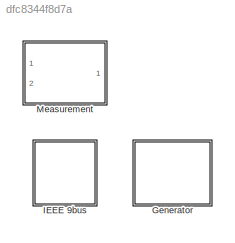
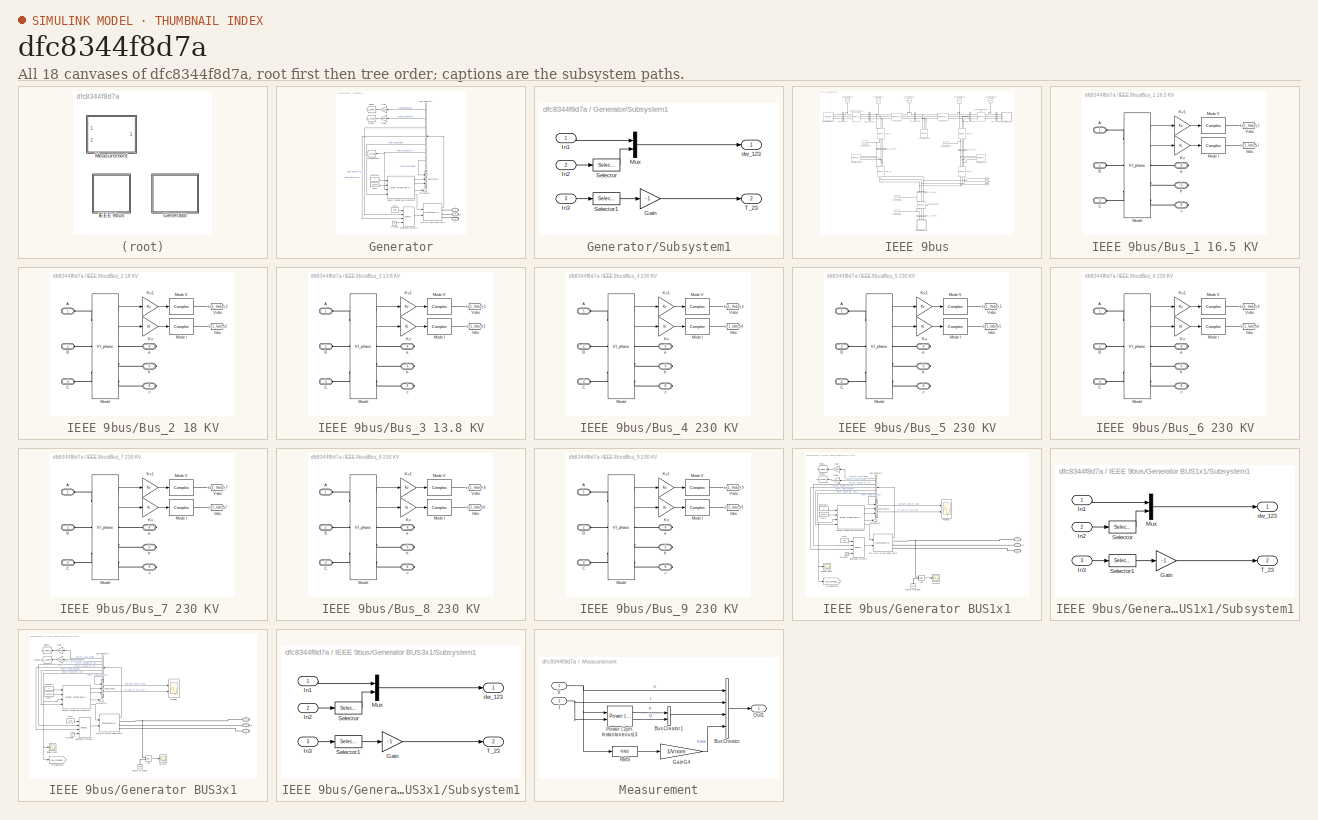
[diagram: thumbnail index - all 18 canvases of the model, root first then tree order]
MODEL slx_dfc8344f8d7a
KIND library
CONFIG AbsTol = auto
CONFIG EnableMultiTasking = off
CONFIG FixedStep = auto
CONFIG MaxStep = auto
CONFIG MinStep = auto
CONFIG RelTol = 1e-3
CONFIG SampleTimeConstraint = Unconstrained
CONFIG Solver = VariableStepAuto
CONFIG SolverName = VariableStepAuto
CONFIG StartTime = 0.0
CONFIG StopTime = 10.0
BLOCK [SubSystem] Generator
  Ports = [0, 0, 0, 0, 0, 0, 3]
  RequestExecContextInheritance = off
  Variant = off
BLOCK [Reference] Generator/192 MVA 18kV 3600 rpm2  REF=powerlib/Machines/Synchronous Machine
pu Standard
  Ports = [2, 1, 0, 0, 0, 0, 3]
  SourceBlock = powerlib/Machines/Synchronous Machine\npu Standard
  SourceProductBaseCode = PS
  SourceProductName = Simscape Power Systems
  SourceType = Synchronous Machine
BLOCK [PMIOPort] Generator/A
  Port = 1
  Side = Right
BLOCK [PMIOPort] Generator/B
  Port = 2
  Side = Right
BLOCK [BusSelector] Generator/Bus Selector3
  OutputAsBus = off
  OutputSignals = Output active power   Peo (pu),Output reactive power  Qeo (pu),dq0 components.Stator voltage  vd (pu),dq0 components.Stator voltage  vq (pu),Mechanical.Rotor angle deviation  d_theta (rad),Mechanical.Rotor speed  wm  (pu),Mechanical.Rotor speed deviation  dw (pu)  <repeated x3 — deduplicated; at blocks: Bus Selector3>
  Ports = [1, 7]
BLOCK [PMIOPort] Generator/C
  Port = 3
  Side = Right
BLOCK [Constant] Generator/Constant1
BLOCK [Reference] Generator/Excitation System2  REF=sps_avr/Excitation System
  Ports = [4, 1]
  SourceBlock = sps_avr/Excitation System
  SourceProductBaseCode = PS
  SourceProductName = Simscape Power Systems
  SourceType = Excitation System
BLOCK [Gain] Generator/Gain
  Gain = 192e6
  OutDataTypeStr = Inherit: Inherit via internal rule
  ParamDataTypeStr = Inherit: Inherit via internal rule
  SaturateOnIntegerOverflow = off
BLOCK [Gain] Generator/Gain1
  Gain = 192e6
  OutDataTypeStr = Inherit: Inherit via internal rule
  ParamDataTypeStr = Inherit: Inherit via internal rule
  SaturateOnIntegerOverflow = off
BLOCK [Ground] Generator/Ground
BLOCK [Goto] Generator/OmegaGen2
  GotoTag = ss1_OmegaGen_2
  TagVisibility = global
BLOCK [Goto] Generator/Pgen2
  GotoTag = ss1_Pgen_2
  TagVisibility = global
BLOCK [Constant] Generator/Pref2
  Value = 0.84896
BLOCK [Goto] Generator/Qgen2
  GotoTag = ss1_Qgen_2
  TagVisibility = global
BLOCK [Reference] Generator/Steam Turbine and Governor1  REF=powerlib/Machines/Steam Turbine
and Governor
  Ports = [4, 4]
  SourceBlock = powerlib/Machines/Steam Turbine\nand Governor
  SourceProductBaseCode = PS
  SourceProductName = Simscape Power Systems
  SourceType = Steam Turbine and Governor
BLOCK [SubSystem] Generator/Subsystem1
  Ports = [3, 2]
  RequestExecContextInheritance = off
  Variant = off
BLOCK [Gain] Generator/Subsystem1/Gain
  Gain = -1
BLOCK [Inport] Generator/Subsystem1/In1
  IconDisplay = Port number
BLOCK [Inport] Generator/Subsystem1/In2
  IconDisplay = Port number
  Port = 2
BLOCK [Inport] Generator/Subsystem1/In3
  IconDisplay = Port number
  Port = 3
BLOCK [Mux] Generator/Subsystem1/Mux
  DisplayOption = bar
  Inputs = 2
  Ports = [2, 1]
BLOCK [Selector] Generator/Subsystem1/Selector
  IndexOptions = Index vector (dialog)
  Indices = [4 3]
  InputPortWidth = 4
  OutputSizes = 1
  Ports = [1, 1]
BLOCK [Selector] Generator/Subsystem1/Selector1
  IndexOptions = Index vector (dialog)
  Indices = [4 3]
  InputPortWidth = 4
  OutputSizes = 1
  Ports = [1, 1]
BLOCK [Outport] Generator/Subsystem1/T_23
  IconDisplay = Port number
  Port = 2
BLOCK [Outport] Generator/Subsystem1/dw_123
  IconDisplay = Port number
BLOCK [Terminator] Generator/Terminator1
BLOCK [Constant] Generator/Vref2
  Value = 1.025
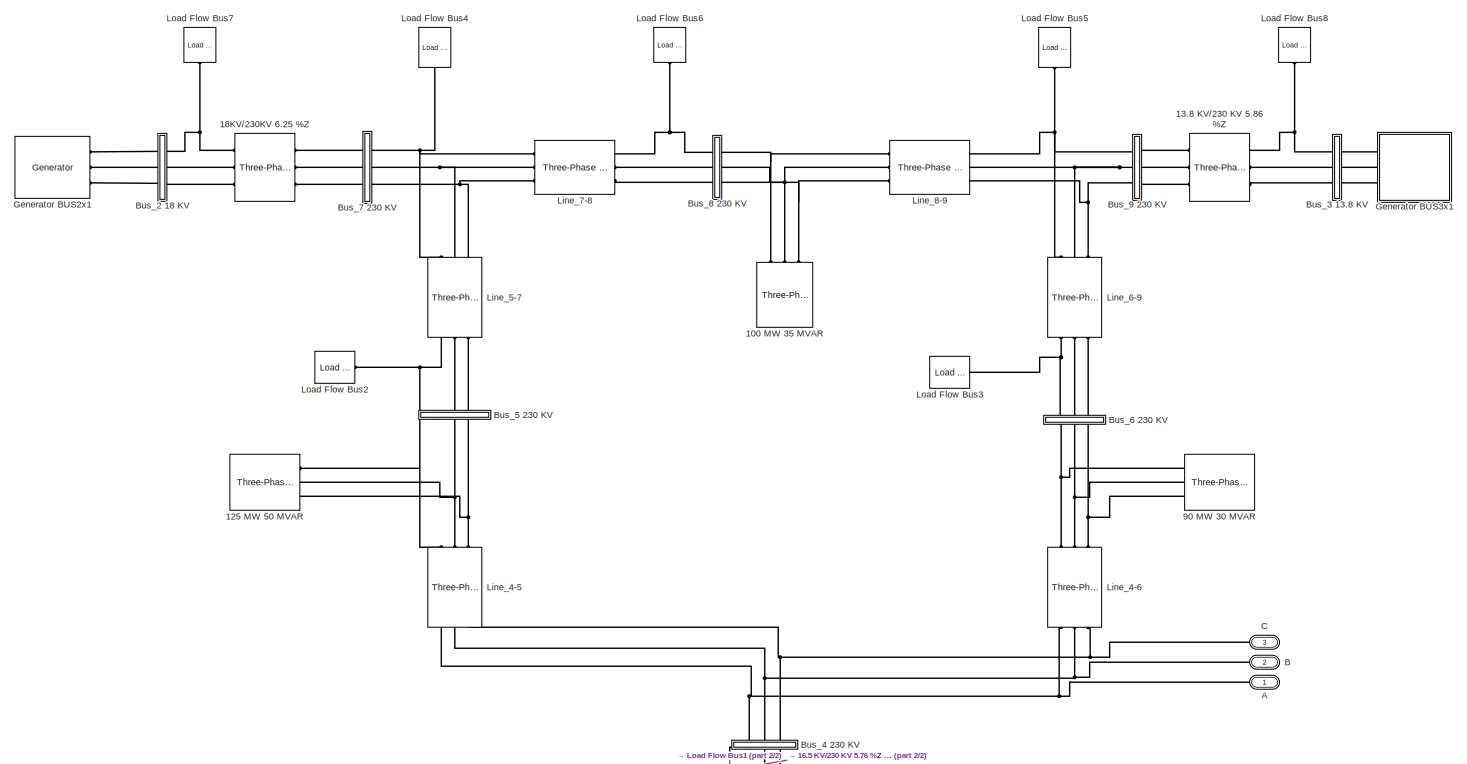
[diagram: IEEE 9bus - part 1/2, full width, middle band]
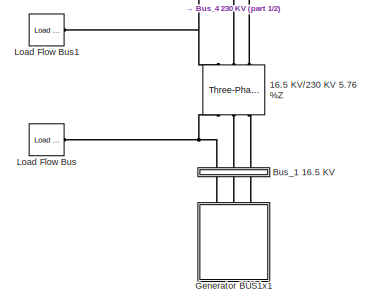
[diagram: IEEE 9bus - part 2/2, bottom center region]
BLOCK [SubSystem] IEEE 9bus
  Ports = [0, 0, 0, 0, 0, 3]
  RequestExecContextInheritance = off
  Variant = off
BLOCK [Reference] IEEE 9bus/100 MW 35 MVAR  REF=powerlib/Elements/Three-Phase
Series RLC Load
  AttributesFormatString = \n
  Ports = [0, 0, 0, 0, 0, 3]
  SourceBlock = powerlib/Elements/Three-Phase\nSeries RLC Load
  SourceProductBaseCode = PS
  SourceProductName = Simscape Power Systems
  SourceType = Three-Phase Series RLC Load
BLOCK [Reference] IEEE 9bus/125 MW 50 MVAR  REF=powerlib/Elements/Three-Phase
Series RLC Load
  AttributesFormatString = \n
  Ports = [0, 0, 0, 0, 0, 3]
  SourceBlock = powerlib/Elements/Three-Phase\nSeries RLC Load
  SourceProductBaseCode = PS
  SourceProductName = Simscape Power Systems
  SourceType = Three-Phase Series RLC Load
BLOCK [Reference] IEEE 9bus/13.8 KV//230 KV 5.86 %Z  REF=powerlib/Elements/Three-Phase
Transformer
(Two Windings)
  Ports = [0, 0, 0, 0, 0, 3, 3]
  SourceBlock = powerlib/Elements/Three-Phase\nTransformer\n(Two Windings)
  SourceProductBaseCode = PS
  SourceProductName = Simscape Power Systems
  SourceType = Three-Phase Transformer (Two Windings)
BLOCK [Reference] IEEE 9bus/16.5 KV//230 KV 5.76 %Z       REF=powerlib/Elements/Three-Phase
Transformer
(Two Windings)
  Ports = [0, 0, 0, 0, 0, 3, 3]
  SourceBlock = powerlib/Elements/Three-Phase\nTransformer\n(Two Windings)
  SourceProductBaseCode = PS
  SourceProductName = Simscape Power Systems
  SourceType = Three-Phase Transformer (Two Windings)
BLOCK [Reference] IEEE 9bus/18KV//230KV 6.25 %Z  REF=powerlib/Elements/Three-Phase
Transformer
(Two Windings)
  Ports = [0, 0, 0, 0, 0, 3, 3]
  SourceBlock = powerlib/Elements/Three-Phase\nTransformer\n(Two Windings)
  SourceProductBaseCode = PS
  SourceProductName = Simscape Power Systems
  SourceType = Three-Phase Transformer (Two Windings)
BLOCK [Reference] IEEE 9bus/90 MW 30 MVAR  REF=powerlib/Elements/Three-Phase
Series RLC Load
  AttributesFormatString = \n
  Ports = [0, 0, 0, 0, 0, 3]
  SourceBlock = powerlib/Elements/Three-Phase\nSeries RLC Load
  SourceProductBaseCode = PS
  SourceProductName = Simscape Power Systems
  SourceType = Three-Phase Series RLC Load
BLOCK [PMIOPort] IEEE 9bus/A
  Port = 1
  Side = Left
BLOCK [PMIOPort] IEEE 9bus/B
  Port = 2
  Side = Left
BLOCK [SubSystem] IEEE 9bus/Bus_1 16.5 KV
  CloseFcn = sps_rtmsupport('CloseFcn',gcbh);
  CopyFcn = sps_rtmsupport('CopyFcn',gcbh); powericon('ThreePhaseVIMeasurementCopy',gcb)
  DeleteFcn = sps_rtmsupport('DeleteFcn',gcbh);
  DialogController = POWERSYS.PowerSysDialog
  LoadFcn = sps_rtmsupport('LoadFcn',gcbh);
  ModelCloseFcn = sps_rtmsupport('ModelCloseFcn',gcbh);
  NameChangeFcn = sps_rtmsupport('NameChangeFcn',gcbh);
  OpenFcn = sps_rtmsupport('OpenFcn',gcbh, [1 2 4 5 6 7 9 -12 13]);
  Ports = [0, 0, 0, 0, 0, 3, 3]
  PostSaveFcn = sps_rtmsupport('PostSaveFcn',gcbh);
  PreCopyFcn = sps_rtmsupport('PreCopyFcn',gcbh);
  PreDeleteFcn = sps_rtmsupport('PreDeleteFcn',gcbh);
  PreSaveFcn = sps_rtmsupport('PreSaveFcn',gcbh);  set_param(gcb,'LinkStatus','restore')
  RequestExecContextInheritance = off
  StartFcn = sps_rtmsupport('StartFcn',gcbh);
  StopFcn = sps_rtmsupport('StopFcn',gcbh);
  UndoDeleteFcn = sps_rtmsupport('UndoDeleteFcn',gcbh);
  Variant = off
BLOCK [PMIOPort] IEEE 9bus/Bus_1 16.5 KV/A
  Port = 1
  Side = Left
BLOCK [PMIOPort] IEEE 9bus/Bus_1 16.5 KV/B
  Port = 2
  Side = Left
BLOCK [PMIOPort] IEEE 9bus/Bus_1 16.5 KV/C
  Port = 3
  Side = Left
BLOCK [Goto] IEEE 9bus/Bus_1 16.5 KV/Iabc
  GotoTag = ss1_Iabc_1
  TagVisibility = global
BLOCK [Gain] IEEE 9bus/Bus_1 16.5 KV/Kv
  Gain = Ki
BLOCK [Gain] IEEE 9bus/Bus_1 16.5 KV/Kv1
  Gain = Kv
BLOCK [Reference] IEEE 9bus/Bus_1 16.5 KV/Mode I  REF=spsVIMeasurementModel/Complex
  Ports = [1, 1]
  SourceBlock = spsVIMeasurementModel/Complex
  SourceType = SubSystem
BLOCK [Reference] IEEE 9bus/Bus_1 16.5 KV/Mode V  REF=spsVIMeasurementModel/Complex
  Ports = [1, 1]
  SourceBlock = spsVIMeasurementModel/Complex
  SourceType = SubSystem
BLOCK [Reference] IEEE 9bus/Bus_1 16.5 KV/Model  REF=spsVIMeasurementModel/VI_phase
  Ports = [0, 2, 0, 0, 0, 3, 3]
  SourceBlock = spsVIMeasurementModel/VI_phase
  SourceType = Simscape Power Systems ST Three-Phase VI Measurement
BLOCK [Goto] IEEE 9bus/Bus_1 16.5 KV/Vabc
  GotoTag = ss1_Vabc_1
  TagVisibility = global
BLOCK [PMIOPort] IEEE 9bus/Bus_1 16.5 KV/a
  Port = 4
  Side = Right
BLOCK [PMIOPort] IEEE 9bus/Bus_1 16.5 KV/b
  Port = 5
  Side = Right
BLOCK [PMIOPort] IEEE 9bus/Bus_1 16.5 KV/c
  Port = 6
  Side = Right
BLOCK [SubSystem] IEEE 9bus/Bus_2 18 KV
  CloseFcn = sps_rtmsupport('CloseFcn',gcbh);
  CopyFcn = sps_rtmsupport('CopyFcn',gcbh); powericon('ThreePhaseVIMeasurementCopy',gcb)
  DeleteFcn = sps_rtmsupport('DeleteFcn',gcbh);
  DialogController = POWERSYS.PowerSysDialog
  LoadFcn = sps_rtmsupport('LoadFcn',gcbh);
  ModelCloseFcn = sps_rtmsupport('ModelCloseFcn',gcbh);
  NameChangeFcn = sps_rtmsupport('NameChangeFcn',gcbh);
  OpenFcn = sps_rtmsupport('OpenFcn',gcbh, [1 2 4 5 6 7 9 -12 13]);
  Ports = [0, 0, 0, 0, 0, 3, 3]
  PostSaveFcn = sps_rtmsupport('PostSaveFcn',gcbh);
  PreCopyFcn = sps_rtmsupport('PreCopyFcn',gcbh);
  PreDeleteFcn = sps_rtmsupport('PreDeleteFcn',gcbh);
  PreSaveFcn = sps_rtmsupport('PreSaveFcn',gcbh);  set_param(gcb,'LinkStatus','restore')
  RequestExecContextInheritance = off
  StartFcn = sps_rtmsupport('StartFcn',gcbh);
  StopFcn = sps_rtmsupport('StopFcn',gcbh);
  UndoDeleteFcn = sps_rtmsupport('UndoDeleteFcn',gcbh);
  Variant = off
BLOCK [PMIOPort] IEEE 9bus/Bus_2 18 KV/A
  Port = 1
  Side = Left
BLOCK [PMIOPort] IEEE 9bus/Bus_2 18 KV/B
  Port = 2
  Side = Left
BLOCK [PMIOPort] IEEE 9bus/Bus_2 18 KV/C
  Port = 3
  Side = Left
BLOCK [Goto] IEEE 9bus/Bus_2 18 KV/Iabc
  GotoTag = ss1_Iabc_2
  TagVisibility = global
BLOCK [Gain] IEEE 9bus/Bus_2 18 KV/Kv
  Gain = Ki
BLOCK [Gain] IEEE 9bus/Bus_2 18 KV/Kv1
  Gain = Kv
BLOCK [Reference] IEEE 9bus/Bus_2 18 KV/Mode I  REF=spsVIMeasurementModel/Complex
  Ports = [1, 1]
  SourceBlock = spsVIMeasurementModel/Complex
  SourceType = SubSystem
BLOCK [Reference] IEEE 9bus/Bus_2 18 KV/Mode V  REF=spsVIMeasurementModel/Complex
  Ports = [1, 1]
  SourceBlock = spsVIMeasurementModel/Complex
  SourceType = SubSystem
BLOCK [Reference] IEEE 9bus/Bus_2 18 KV/Model  REF=spsVIMeasurementModel/VI_phase
  Ports = [0, 2, 0, 0, 0, 3, 3]
  SourceBlock = spsVIMeasurementModel/VI_phase
  SourceType = Simscape Power Systems ST Three-Phase VI Measurement
BLOCK [Goto] IEEE 9bus/Bus_2 18 KV/Vabc
  GotoTag = ss1_Vabc_2
  TagVisibility = global
BLOCK [PMIOPort] IEEE 9bus/Bus_2 18 KV/a
  Port = 4
  Side = Right
BLOCK [PMIOPort] IEEE 9bus/Bus_2 18 KV/b
  Port = 5
  Side = Right
BLOCK [PMIOPort] IEEE 9bus/Bus_2 18 KV/c
  Port = 6
  Side = Right
BLOCK [SubSystem] IEEE 9bus/Bus_3 13.8 KV
  CloseFcn = sps_rtmsupport('CloseFcn',gcbh);
  CopyFcn = sps_rtmsupport('CopyFcn',gcbh); powericon('ThreePhaseVIMeasurementCopy',gcb)
  DeleteFcn = sps_rtmsupport('DeleteFcn',gcbh);
  DialogController = POWERSYS.PowerSysDialog
  LoadFcn = sps_rtmsupport('LoadFcn',gcbh);
  ModelCloseFcn = sps_rtmsupport('ModelCloseFcn',gcbh);
  NameChangeFcn = sps_rtmsupport('NameChangeFcn',gcbh);
  OpenFcn = sps_rtmsupport('OpenFcn',gcbh, [1 2 4 5 6 7 9 -12 13]);
  Ports = [0, 0, 0, 0, 0, 3, 3]
  PostSaveFcn = sps_rtmsupport('PostSaveFcn',gcbh);
  PreCopyFcn = sps_rtmsupport('PreCopyFcn',gcbh);
  PreDeleteFcn = sps_rtmsupport('PreDeleteFcn',gcbh);
  PreSaveFcn = sps_rtmsupport('PreSaveFcn',gcbh);  set_param(gcb,'LinkStatus','restore')
  RequestExecContextInheritance = off
  StartFcn = sps_rtmsupport('StartFcn',gcbh);
  StopFcn = sps_rtmsupport('StopFcn',gcbh);
  UndoDeleteFcn = sps_rtmsupport('UndoDeleteFcn',gcbh);
  Variant = off
BLOCK [PMIOPort] IEEE 9bus/Bus_3 13.8 KV/A
  Port = 1
  Side = Left
BLOCK [PMIOPort] IEEE 9bus/Bus_3 13.8 KV/B
  Port = 2
  Side = Left
BLOCK [PMIOPort] IEEE 9bus/Bus_3 13.8 KV/C
  Port = 3
  Side = Left
BLOCK [Goto] IEEE 9bus/Bus_3 13.8 KV/Iabc
  GotoTag = ss1_Iabc_3
  TagVisibility = global
BLOCK [Gain] IEEE 9bus/Bus_3 13.8 KV/Kv
  Gain = Ki
BLOCK [Gain] IEEE 9bus/Bus_3 13.8 KV/Kv1
  Gain = Kv
BLOCK [Reference] IEEE 9bus/Bus_3 13.8 KV/Mode I  REF=spsVIMeasurementModel/Complex
  Ports = [1, 1]
  SourceBlock = spsVIMeasurementModel/Complex
  SourceType = SubSystem
BLOCK [Reference] IEEE 9bus/Bus_3 13.8 KV/Mode V  REF=spsVIMeasurementModel/Complex
  Ports = [1, 1]
  SourceBlock = spsVIMeasurementModel/Complex
  SourceType = SubSystem
BLOCK [Reference] IEEE 9bus/Bus_3 13.8 KV/Model  REF=spsVIMeasurementModel/VI_phase
  Ports = [0, 2, 0, 0, 0, 3, 3]
  SourceBlock = spsVIMeasurementModel/VI_phase
  SourceType = Simscape Power Systems ST Three-Phase VI Measurement
BLOCK [Goto] IEEE 9bus/Bus_3 13.8 KV/Vabc
  GotoTag = ss1_Vabc_3
  TagVisibility = global
BLOCK [PMIOPort] IEEE 9bus/Bus_3 13.8 KV/a
  Port = 4
  Side = Right
BLOCK [PMIOPort] IEEE 9bus/Bus_3 13.8 KV/b
  Port = 5
  Side = Right
BLOCK [PMIOPort] IEEE 9bus/Bus_3 13.8 KV/c
  Port = 6
  Side = Right
BLOCK [SubSystem] IEEE 9bus/Bus_4 230 KV
  CloseFcn = sps_rtmsupport('CloseFcn',gcbh);
  CopyFcn = sps_rtmsupport('CopyFcn',gcbh); powericon('ThreePhaseVIMeasurementCopy',gcb)
  DeleteFcn = sps_rtmsupport('DeleteFcn',gcbh);
  DialogController = POWERSYS.PowerSysDialog
  LoadFcn = sps_rtmsupport('LoadFcn',gcbh);
  ModelCloseFcn = sps_rtmsupport('ModelCloseFcn',gcbh);
  NameChangeFcn = sps_rtmsupport('NameChangeFcn',gcbh);
  OpenFcn = sps_rtmsupport('OpenFcn',gcbh, [1 2 4 5 6 7 9 -12 13]);
  Ports = [0, 0, 0, 0, 0, 3, 3]
  PostSaveFcn = sps_rtmsupport('PostSaveFcn',gcbh);
  PreCopyFcn = sps_rtmsupport('PreCopyFcn',gcbh);
  PreDeleteFcn = sps_rtmsupport('PreDeleteFcn',gcbh);
  PreSaveFcn = sps_rtmsupport('PreSaveFcn',gcbh);  set_param(gcb,'LinkStatus','restore')
  RequestExecContextInheritance = off
  StartFcn = sps_rtmsupport('StartFcn',gcbh);
  StopFcn = sps_rtmsupport('StopFcn',gcbh);
  UndoDeleteFcn = sps_rtmsupport('UndoDeleteFcn',gcbh);
  Variant = off
BLOCK [PMIOPort] IEEE 9bus/Bus_4 230 KV/A
  Port = 1
  Side = Left
BLOCK [PMIOPort] IEEE 9bus/Bus_4 230 KV/B
  Port = 2
  Side = Left
BLOCK [PMIOPort] IEEE 9bus/Bus_4 230 KV/C
  Port = 3
  Side = Left
BLOCK [Goto] IEEE 9bus/Bus_4 230 KV/Iabc
  GotoTag = ss1_Iabc_4
  TagVisibility = global
BLOCK [Gain] IEEE 9bus/Bus_4 230 KV/Kv
  Gain = Ki
BLOCK [Gain] IEEE 9bus/Bus_4 230 KV/Kv1
  Gain = Kv
BLOCK [Reference] IEEE 9bus/Bus_4 230 KV/Mode I  REF=spsVIMeasurementModel/Complex
  Ports = [1, 1]
  SourceBlock = spsVIMeasurementModel/Complex
  SourceType = SubSystem
BLOCK [Reference] IEEE 9bus/Bus_4 230 KV/Mode V  REF=spsVIMeasurementModel/Complex
  Ports = [1, 1]
  SourceBlock = spsVIMeasurementModel/Complex
  SourceType = SubSystem
BLOCK [Reference] IEEE 9bus/Bus_4 230 KV/Model  REF=spsVIMeasurementModel/VI_phase
  Ports = [0, 2, 0, 0, 0, 3, 3]
  SourceBlock = spsVIMeasurementModel/VI_phase
  SourceType = Simscape Power Systems ST Three-Phase VI Measurement
BLOCK [Goto] IEEE 9bus/Bus_4 230 KV/Vabc
  GotoTag = ss1_Vabc_4
  TagVisibility = global
BLOCK [PMIOPort] IEEE 9bus/Bus_4 230 KV/a
  Port = 4
  Side = Right
BLOCK [PMIOPort] IEEE 9bus/Bus_4 230 KV/b
  Port = 5
  Side = Right
BLOCK [PMIOPort] IEEE 9bus/Bus_4 230 KV/c
  Port = 6
  Side = Right
BLOCK [SubSystem] IEEE 9bus/Bus_5 230 KV
  CloseFcn = sps_rtmsupport('CloseFcn',gcbh);
  CopyFcn = sps_rtmsupport('CopyFcn',gcbh); powericon('ThreePhaseVIMeasurementCopy',gcb)
  DeleteFcn = sps_rtmsupport('DeleteFcn',gcbh);
  DialogController = POWERSYS.PowerSysDialog
  LoadFcn = sps_rtmsupport('LoadFcn',gcbh);
  ModelCloseFcn = sps_rtmsupport('ModelCloseFcn',gcbh);
  NameChangeFcn = sps_rtmsupport('NameChangeFcn',gcbh);
  OpenFcn = sps_rtmsupport('OpenFcn',gcbh, [1 2 4 5 6 7 9 -12 13]);
  Ports = [0, 0, 0, 0, 0, 3, 3]
  PostSaveFcn = sps_rtmsupport('PostSaveFcn',gcbh);
  PreCopyFcn = sps_rtmsupport('PreCopyFcn',gcbh);
  PreDeleteFcn = sps_rtmsupport('PreDeleteFcn',gcbh);
  PreSaveFcn = sps_rtmsupport('PreSaveFcn',gcbh);  set_param(gcb,'LinkStatus','restore')
  RequestExecContextInheritance = off
  StartFcn = sps_rtmsupport('StartFcn',gcbh);
  StopFcn = sps_rtmsupport('StopFcn',gcbh);
  UndoDeleteFcn = sps_rtmsupport('UndoDeleteFcn',gcbh);
  Variant = off
BLOCK [PMIOPort] IEEE 9bus/Bus_5 230 KV/A
  Port = 1
  Side = Left
BLOCK [PMIOPort] IEEE 9bus/Bus_5 230 KV/B
  Port = 2
  Side = Left
BLOCK [PMIOPort] IEEE 9bus/Bus_5 230 KV/C
  Port = 3
  Side = Left
BLOCK [Goto] IEEE 9bus/Bus_5 230 KV/Iabc
  GotoTag = ss1_Iabc_5
  TagVisibility = global
BLOCK [Gain] IEEE 9bus/Bus_5 230 KV/Kv
  Gain = Ki
BLOCK [Gain] IEEE 9bus/Bus_5 230 KV/Kv1
  Gain = Kv
BLOCK [Reference] IEEE 9bus/Bus_5 230 KV/Mode I  REF=spsVIMeasurementModel/Complex
  Ports = [1, 1]
  SourceBlock = spsVIMeasurementModel/Complex
  SourceType = SubSystem
BLOCK [Reference] IEEE 9bus/Bus_5 230 KV/Mode V  REF=spsVIMeasurementModel/Complex
  Ports = [1, 1]
  SourceBlock = spsVIMeasurementModel/Complex
  SourceType = SubSystem
BLOCK [Reference] IEEE 9bus/Bus_5 230 KV/Model  REF=spsVIMeasurementModel/VI_phase
  Ports = [0, 2, 0, 0, 0, 3, 3]
  SourceBlock = spsVIMeasurementModel/VI_phase
  SourceType = Simscape Power Systems ST Three-Phase VI Measurement
BLOCK [Goto] IEEE 9bus/Bus_5 230 KV/Vabc
  GotoTag = ss1_Vabc_5
  TagVisibility = global
BLOCK [PMIOPort] IEEE 9bus/Bus_5 230 KV/a
  Port = 4
  Side = Right
BLOCK [PMIOPort] IEEE 9bus/Bus_5 230 KV/b
  Port = 5
  Side = Right
BLOCK [PMIOPort] IEEE 9bus/Bus_5 230 KV/c
  Port = 6
  Side = Right
BLOCK [SubSystem] IEEE 9bus/Bus_6 230 KV
  CloseFcn = sps_rtmsupport('CloseFcn',gcbh);
  CopyFcn = sps_rtmsupport('CopyFcn',gcbh); powericon('ThreePhaseVIMeasurementCopy',gcb)
  DeleteFcn = sps_rtmsupport('DeleteFcn',gcbh);
  DialogController = POWERSYS.PowerSysDialog
  LoadFcn = sps_rtmsupport('LoadFcn',gcbh);
  ModelCloseFcn = sps_rtmsupport('ModelCloseFcn',gcbh);
  NameChangeFcn = sps_rtmsupport('NameChangeFcn',gcbh);
  OpenFcn = sps_rtmsupport('OpenFcn',gcbh, [1 2 4 5 6 7 9 -12 13]);
  Ports = [0, 0, 0, 0, 0, 3, 3]
  PostSaveFcn = sps_rtmsupport('PostSaveFcn',gcbh);
  PreCopyFcn = sps_rtmsupport('PreCopyFcn',gcbh);
  PreDeleteFcn = sps_rtmsupport('PreDeleteFcn',gcbh);
  PreSaveFcn = sps_rtmsupport('PreSaveFcn',gcbh);  set_param(gcb,'LinkStatus','restore')
  RequestExecContextInheritance = off
  StartFcn = sps_rtmsupport('StartFcn',gcbh);
  StopFcn = sps_rtmsupport('StopFcn',gcbh);
  UndoDeleteFcn = sps_rtmsupport('UndoDeleteFcn',gcbh);
  Variant = off
BLOCK [PMIOPort] IEEE 9bus/Bus_6 230 KV/A
  Port = 1
  Side = Left
BLOCK [PMIOPort] IEEE 9bus/Bus_6 230 KV/B
  Port = 2
  Side = Left
BLOCK [PMIOPort] IEEE 9bus/Bus_6 230 KV/C
  Port = 3
  Side = Left
BLOCK [Goto] IEEE 9bus/Bus_6 230 KV/Iabc
  GotoTag = ss1_Iabc_6
  TagVisibility = global
BLOCK [Gain] IEEE 9bus/Bus_6 230 KV/Kv
  Gain = Ki
BLOCK [Gain] IEEE 9bus/Bus_6 230 KV/Kv1
  Gain = Kv
BLOCK [Reference] IEEE 9bus/Bus_6 230 KV/Mode I  REF=spsVIMeasurementModel/Complex
  Ports = [1, 1]
  SourceBlock = spsVIMeasurementModel/Complex
  SourceType = SubSystem
BLOCK [Reference] IEEE 9bus/Bus_6 230 KV/Mode V  REF=spsVIMeasurementModel/Complex
  Ports = [1, 1]
  SourceBlock = spsVIMeasurementModel/Complex
  SourceType = SubSystem
BLOCK [Reference] IEEE 9bus/Bus_6 230 KV/Model  REF=spsVIMeasurementModel/VI_phase
  Ports = [0, 2, 0, 0, 0, 3, 3]
  SourceBlock = spsVIMeasurementModel/VI_phase
  SourceType = Simscape Power Systems ST Three-Phase VI Measurement
BLOCK [Goto] IEEE 9bus/Bus_6 230 KV/Vabc
  GotoTag = ss1_Vabc_6
  TagVisibility = global
BLOCK [PMIOPort] IEEE 9bus/Bus_6 230 KV/a
  Port = 4
  Side = Right
BLOCK [PMIOPort] IEEE 9bus/Bus_6 230 KV/b
  Port = 5
  Side = Right
BLOCK [PMIOPort] IEEE 9bus/Bus_6 230 KV/c
  Port = 6
  Side = Right
BLOCK [SubSystem] IEEE 9bus/Bus_7 230 KV 
  CloseFcn = sps_rtmsupport('CloseFcn',gcbh);
  CopyFcn = sps_rtmsupport('CopyFcn',gcbh); powericon('ThreePhaseVIMeasurementCopy',gcb)
  DeleteFcn = sps_rtmsupport('DeleteFcn',gcbh);
  DialogController = POWERSYS.PowerSysDialog
  LoadFcn = sps_rtmsupport('LoadFcn',gcbh);
  ModelCloseFcn = sps_rtmsupport('ModelCloseFcn',gcbh);
  NameChangeFcn = sps_rtmsupport('NameChangeFcn',gcbh);
  OpenFcn = sps_rtmsupport('OpenFcn',gcbh, [1 2 4 5 6 7 9 -12 13]);
  Ports = [0, 0, 0, 0, 0, 3, 3]
  PostSaveFcn = sps_rtmsupport('PostSaveFcn',gcbh);
  PreCopyFcn = sps_rtmsupport('PreCopyFcn',gcbh);
  PreDeleteFcn = sps_rtmsupport('PreDeleteFcn',gcbh);
  PreSaveFcn = sps_rtmsupport('PreSaveFcn',gcbh);  set_param(gcb,'LinkStatus','restore')
  RequestExecContextInheritance = off
  StartFcn = sps_rtmsupport('StartFcn',gcbh);
  StopFcn = sps_rtmsupport('StopFcn',gcbh);
  UndoDeleteFcn = sps_rtmsupport('UndoDeleteFcn',gcbh);
  Variant = off
BLOCK [PMIOPort] IEEE 9bus/Bus_7 230 KV /A
  Port = 1
  Side = Left
BLOCK [PMIOPort] IEEE 9bus/Bus_7 230 KV /B
  Port = 2
  Side = Left
BLOCK [PMIOPort] IEEE 9bus/Bus_7 230 KV /C
  Port = 3
  Side = Left
BLOCK [Goto] IEEE 9bus/Bus_7 230 KV /Iabc
  GotoTag = ss1_Iabc_7
  TagVisibility = global
BLOCK [Gain] IEEE 9bus/Bus_7 230 KV /Kv
  Gain = Ki
BLOCK [Gain] IEEE 9bus/Bus_7 230 KV /Kv1
  Gain = Kv
BLOCK [Reference] IEEE 9bus/Bus_7 230 KV /Mode I  REF=spsVIMeasurementModel/Complex
  Ports = [1, 1]
  SourceBlock = spsVIMeasurementModel/Complex
  SourceType = SubSystem
BLOCK [Reference] IEEE 9bus/Bus_7 230 KV /Mode V  REF=spsVIMeasurementModel/Complex
  Ports = [1, 1]
  SourceBlock = spsVIMeasurementModel/Complex
  SourceType = SubSystem
BLOCK [Reference] IEEE 9bus/Bus_7 230 KV /Model  REF=spsVIMeasurementModel/VI_phase
  Ports = [0, 2, 0, 0, 0, 3, 3]
  SourceBlock = spsVIMeasurementModel/VI_phase
  SourceType = Simscape Power Systems ST Three-Phase VI Measurement
BLOCK [Goto] IEEE 9bus/Bus_7 230 KV /Vabc
  GotoTag = ss1_Vabc_7
  TagVisibility = global
BLOCK [PMIOPort] IEEE 9bus/Bus_7 230 KV /a
  Port = 4
  Side = Right
BLOCK [PMIOPort] IEEE 9bus/Bus_7 230 KV /b
  Port = 5
  Side = Right
BLOCK [PMIOPort] IEEE 9bus/Bus_7 230 KV /c
  Port = 6
  Side = Right
BLOCK [SubSystem] IEEE 9bus/Bus_8 230 KV
  CloseFcn = sps_rtmsupport('CloseFcn',gcbh);
  CopyFcn = sps_rtmsupport('CopyFcn',gcbh); powericon('ThreePhaseVIMeasurementCopy',gcb)
  DeleteFcn = sps_rtmsupport('DeleteFcn',gcbh);
  DialogController = POWERSYS.PowerSysDialog
  LoadFcn = sps_rtmsupport('LoadFcn',gcbh);
  ModelCloseFcn = sps_rtmsupport('ModelCloseFcn',gcbh);
  NameChangeFcn = sps_rtmsupport('NameChangeFcn',gcbh);
  OpenFcn = sps_rtmsupport('OpenFcn',gcbh, [1 2 4 5 6 7 9 -12 13]);
  Ports = [0, 0, 0, 0, 0, 3, 3]
  PostSaveFcn = sps_rtmsupport('PostSaveFcn',gcbh);
  PreCopyFcn = sps_rtmsupport('PreCopyFcn',gcbh);
  PreDeleteFcn = sps_rtmsupport('PreDeleteFcn',gcbh);
  PreSaveFcn = sps_rtmsupport('PreSaveFcn',gcbh);  set_param(gcb,'LinkStatus','restore')
  RequestExecContextInheritance = off
  StartFcn = sps_rtmsupport('StartFcn',gcbh);
  StopFcn = sps_rtmsupport('StopFcn',gcbh);
  UndoDeleteFcn = sps_rtmsupport('UndoDeleteFcn',gcbh);
  Variant = off
BLOCK [PMIOPort] IEEE 9bus/Bus_8 230 KV/A
  Port = 1
  Side = Left
BLOCK [PMIOPort] IEEE 9bus/Bus_8 230 KV/B
  Port = 2
  Side = Left
BLOCK [PMIOPort] IEEE 9bus/Bus_8 230 KV/C
  Port = 3
  Side = Left
BLOCK [Goto] IEEE 9bus/Bus_8 230 KV/Iabc
  GotoTag = ss1_Iabc_8
  TagVisibility = global
BLOCK [Gain] IEEE 9bus/Bus_8 230 KV/Kv
  Gain = Ki
BLOCK [Gain] IEEE 9bus/Bus_8 230 KV/Kv1
  Gain = Kv
BLOCK [Reference] IEEE 9bus/Bus_8 230 KV/Mode I  REF=spsVIMeasurementModel/Complex
  Ports = [1, 1]
  SourceBlock = spsVIMeasurementModel/Complex
  SourceType = SubSystem
BLOCK [Reference] IEEE 9bus/Bus_8 230 KV/Mode V  REF=spsVIMeasurementModel/Complex
  Ports = [1, 1]
  SourceBlock = spsVIMeasurementModel/Complex
  SourceType = SubSystem
BLOCK [Reference] IEEE 9bus/Bus_8 230 KV/Model  REF=spsVIMeasurementModel/VI_phase
  Ports = [0, 2, 0, 0, 0, 3, 3]
  SourceBlock = spsVIMeasurementModel/VI_phase
  SourceType = Simscape Power Systems ST Three-Phase VI Measurement
BLOCK [Goto] IEEE 9bus/Bus_8 230 KV/Vabc
  GotoTag = ss1_Vabc_8
  TagVisibility = global
BLOCK [PMIOPort] IEEE 9bus/Bus_8 230 KV/a
  Port = 4
  Side = Right
BLOCK [PMIOPort] IEEE 9bus/Bus_8 230 KV/b
  Port = 5
  Side = Right
BLOCK [PMIOPort] IEEE 9bus/Bus_8 230 KV/c
  Port = 6
  Side = Right
BLOCK [SubSystem] IEEE 9bus/Bus_9 230 KV
  CloseFcn = sps_rtmsupport('CloseFcn',gcbh);
  CopyFcn = sps_rtmsupport('CopyFcn',gcbh); powericon('ThreePhaseVIMeasurementCopy',gcb)
  DeleteFcn = sps_rtmsupport('DeleteFcn',gcbh);
  DialogController = POWERSYS.PowerSysDialog
  LoadFcn = sps_rtmsupport('LoadFcn',gcbh);
  ModelCloseFcn = sps_rtmsupport('ModelCloseFcn',gcbh);
  NameChangeFcn = sps_rtmsupport('NameChangeFcn',gcbh);
  OpenFcn = sps_rtmsupport('OpenFcn',gcbh, [1 2 4 5 6 7 9 -12 13]);
  Ports = [0, 0, 0, 0, 0, 3, 3]
  PostSaveFcn = sps_rtmsupport('PostSaveFcn',gcbh);
  PreCopyFcn = sps_rtmsupport('PreCopyFcn',gcbh);
  PreDeleteFcn = sps_rtmsupport('PreDeleteFcn',gcbh);
  PreSaveFcn = sps_rtmsupport('PreSaveFcn',gcbh);  set_param(gcb,'LinkStatus','restore')
  RequestExecContextInheritance = off
  StartFcn = sps_rtmsupport('StartFcn',gcbh);
  StopFcn = sps_rtmsupport('StopFcn',gcbh);
  UndoDeleteFcn = sps_rtmsupport('UndoDeleteFcn',gcbh);
  Variant = off
BLOCK [PMIOPort] IEEE 9bus/Bus_9 230 KV/A
  Port = 1
  Side = Left
BLOCK [PMIOPort] IEEE 9bus/Bus_9 230 KV/B
  Port = 2
  Side = Left
BLOCK [PMIOPort] IEEE 9bus/Bus_9 230 KV/C
  Port = 3
  Side = Left
BLOCK [Goto] IEEE 9bus/Bus_9 230 KV/Iabc
  GotoTag = ss1_Iabc_9
  TagVisibility = global
BLOCK [Gain] IEEE 9bus/Bus_9 230 KV/Kv
  Gain = Ki
BLOCK [Gain] IEEE 9bus/Bus_9 230 KV/Kv1
  Gain = Kv
BLOCK [Reference] IEEE 9bus/Bus_9 230 KV/Mode I  REF=spsVIMeasurementModel/Complex
  Ports = [1, 1]
  SourceBlock = spsVIMeasurementModel/Complex
  SourceType = SubSystem
BLOCK [Reference] IEEE 9bus/Bus_9 230 KV/Mode V  REF=spsVIMeasurementModel/Complex
  Ports = [1, 1]
  SourceBlock = spsVIMeasurementModel/Complex
  SourceType = SubSystem
BLOCK [Reference] IEEE 9bus/Bus_9 230 KV/Model  REF=spsVIMeasurementModel/VI_phase
  Ports = [0, 2, 0, 0, 0, 3, 3]
  SourceBlock = spsVIMeasurementModel/VI_phase
  SourceType = Simscape Power Systems ST Three-Phase VI Measurement
BLOCK [Goto] IEEE 9bus/Bus_9 230 KV/Vabc
  GotoTag = ss1_Vabc_9
  TagVisibility = global
BLOCK [PMIOPort] IEEE 9bus/Bus_9 230 KV/a
  Port = 4
  Side = Right
BLOCK [PMIOPort] IEEE 9bus/Bus_9 230 KV/b
  Port = 5
  Side = Right
BLOCK [PMIOPort] IEEE 9bus/Bus_9 230 KV/c
  Port = 6
  Side = Right
BLOCK [PMIOPort] IEEE 9bus/C
  Port = 3
  Side = Left
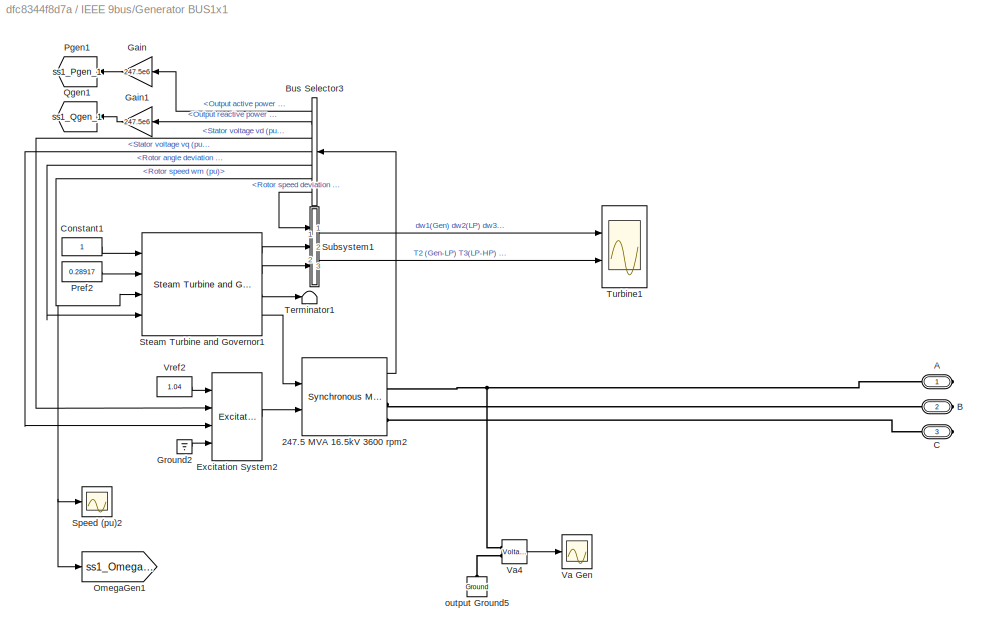
BLOCK [SubSystem] IEEE 9bus/Generator BUS1x1
  Ports = [0, 0, 0, 0, 0, 0, 3]
  RequestExecContextInheritance = off
  Variant = off
BLOCK [Scope] IEEE 9bus/Generator BUS1x1/ Speed (pu)2
  NumInputPorts = 1
  Ports = [1]
  ScopeSpecificationString = Simulink.scopes.TimeScopeBlockCfg('CurrentConfiguration', extmgr.ConfigurationSet(extmgr.Configuration('Core','General UI',true,'FigureColor',[0.156862745098039 0.156862745098039 0.156862745098039]),extmgr.Configuration('Core','Source UI',true),extmgr.Configuration('Sources','WiredSimulink',true,'DataLogging',true,'DataLoggingVariableName','Gen1Freq','DataLoggingSaveFormat','StructureWithTime','Da...<+2840ch>
BLOCK [Reference] IEEE 9bus/Generator BUS1x1/247.5 MVA 16.5kV 3600 rpm2  REF=powerlib/Machines/Synchronous Machine
pu Standard
  Ports = [2, 1, 0, 0, 0, 0, 3]
  SourceBlock = powerlib/Machines/Synchronous Machine\npu Standard
  SourceProductBaseCode = PS
  SourceProductName = Simscape Power Systems
  SourceType = Synchronous Machine
BLOCK [PMIOPort] IEEE 9bus/Generator BUS1x1/A
  Port = 1
  Side = Right
BLOCK [PMIOPort] IEEE 9bus/Generator BUS1x1/B
  Port = 2
  Side = Right
BLOCK [BusSelector] IEEE 9bus/Generator BUS1x1/Bus Selector3
  OutputAsBus = off
  Ports = [1, 7]
BLOCK [PMIOPort] IEEE 9bus/Generator BUS1x1/C
  Port = 3
  Side = Right
BLOCK [Constant] IEEE 9bus/Generator BUS1x1/Constant1
BLOCK [Reference] IEEE 9bus/Generator BUS1x1/Excitation System2  REF=sps_avr/Excitation System
  Ports = [4, 1]
  SourceBlock = sps_avr/Excitation System
  SourceProductBaseCode = PS
  SourceProductName = Simscape Power Systems
  SourceType = Excitation System
BLOCK [Gain] IEEE 9bus/Generator BUS1x1/Gain
  Gain = 247.5e6
  OutDataTypeStr = Inherit: Inherit via internal rule
  ParamDataTypeStr = Inherit: Inherit via internal rule
  SaturateOnIntegerOverflow = off
BLOCK [Gain] IEEE 9bus/Generator BUS1x1/Gain1
  Gain = 247.5e6
  OutDataTypeStr = Inherit: Inherit via internal rule
  ParamDataTypeStr = Inherit: Inherit via internal rule
  SaturateOnIntegerOverflow = off
BLOCK [Ground] IEEE 9bus/Generator BUS1x1/Ground2
BLOCK [Goto] IEEE 9bus/Generator BUS1x1/OmegaGen1
  GotoTag = ss1_OmegaGen_1
  TagVisibility = global
BLOCK [Goto] IEEE 9bus/Generator BUS1x1/Pgen1
  GotoTag = ss1_Pgen_1
  TagVisibility = global
BLOCK [Constant] IEEE 9bus/Generator BUS1x1/Pref2
  Value = 0.28917
BLOCK [Goto] IEEE 9bus/Generator BUS1x1/Qgen1
  GotoTag = ss1_Qgen_1
  TagVisibility = global
BLOCK [Reference] IEEE 9bus/Generator BUS1x1/Steam Turbine and Governor1  REF=powerlib/Machines/Steam Turbine
and Governor
  Ports = [4, 4]
  SourceBlock = powerlib/Machines/Steam Turbine\nand Governor
  SourceProductBaseCode = PS
  SourceProductName = Simscape Power Systems
  SourceType = Steam Turbine and Governor
BLOCK [SubSystem] IEEE 9bus/Generator BUS1x1/Subsystem1
  Ports = [3, 2]
  RequestExecContextInheritance = off
  Variant = off
BLOCK [Gain] IEEE 9bus/Generator BUS1x1/Subsystem1/Gain
  Gain = -1
BLOCK [Inport] IEEE 9bus/Generator BUS1x1/Subsystem1/In1
  IconDisplay = Port number
BLOCK [Inport] IEEE 9bus/Generator BUS1x1/Subsystem1/In2
  IconDisplay = Port number
  Port = 2
BLOCK [Inport] IEEE 9bus/Generator BUS1x1/Subsystem1/In3
  IconDisplay = Port number
  Port = 3
BLOCK [Mux] IEEE 9bus/Generator BUS1x1/Subsystem1/Mux
  DisplayOption = bar
  Inputs = 2
  Ports = [2, 1]
BLOCK [Selector] IEEE 9bus/Generator BUS1x1/Subsystem1/Selector
  IndexOptions = Index vector (dialog)
  Indices = [4 3]
  InputPortWidth = 4
  OutputSizes = 1
  Ports = [1, 1]
BLOCK [Selector] IEEE 9bus/Generator BUS1x1/Subsystem1/Selector1
  IndexOptions = Index vector (dialog)
  Indices = [4 3]
  InputPortWidth = 4
  OutputSizes = 1
  Ports = [1, 1]
BLOCK [Outport] IEEE 9bus/Generator BUS1x1/Subsystem1/T_23
  IconDisplay = Port number
  Port = 2
BLOCK [Outport] IEEE 9bus/Generator BUS1x1/Subsystem1/dw_123
  IconDisplay = Port number
BLOCK [Terminator] IEEE 9bus/Generator BUS1x1/Terminator1
BLOCK [Scope] IEEE 9bus/Generator BUS1x1/Turbine1
  NumInputPorts = 2
  Ports = [2]
  ScopeSpecificationString = C++SS(StrPVP('Location','[1, 49, 1601, 859]'),StrPVP('Open','off'),StrPVP('ZoomMode','yonly'),MxPVP('AxesTitles',53,'struct(''axes1'',''%<SignalLabel>'',''axes2'',''%<SignalLabel>'')'),MxPVP('ScopeGraphics',56,'struct(''FigureColor'',''[0.156862745098039 0.156862745098039 0.156862745098039]'',''AxesColor'',''[0 0 0]'',''AxesTickColor'',''[0.686274509803922 0.686274509803922 0.686274509803922]'',''...<+481ch>
BLOCK [Scope] IEEE 9bus/Generator BUS1x1/Va Gen
  NumInputPorts = 1
  Ports = [1]
  ScopeSpecificationString = C++SS(StrPVP('Location','[25, 61, 1625, 871]'),StrPVP('Open','off'),StrPVP('TickLabels','on'),MxPVP('AxesTitles',53,'struct(''axes1'',''%<SignalLabel>'')'),MxPVP('ScopeGraphics',56,'struct(''FigureColor'',''[0.156862745098039 0.156862745098039 0.156862745098039]'',''AxesColor'',''[0 0 0]'',''AxesTickColor'',''[0.686274509803922 0.686274509803922 0.686274509803922]'',''LineColors'',''[1 1 0;1 0 1;0...<+431ch>
BLOCK [Reference] IEEE 9bus/Generator BUS1x1/Va4  REF=powerlib/Measurements/Voltage Measurement
  AttributesFormatString = \n
  Ports = [0, 1, 0, 0, 0, 2]
  SourceBlock = powerlib/Measurements/Voltage Measurement
  SourceProductBaseCode = PS
  SourceProductName = Simscape Power Systems
  SourceType = Voltage Measurement
  Tag = PoWeRsYsTeMmEaSuReMeNt
BLOCK [Constant] IEEE 9bus/Generator BUS1x1/Vref2
  Value = 1.04
BLOCK [Reference] IEEE 9bus/Generator BUS1x1/output Ground5  REF=powerlib/Elements/Ground
  AttributesFormatString = \n
  Ports = [0, 0, 0, 0, 0, 1]
  SourceBlock = powerlib/Elements/Ground
  SourceProductBaseCode = PS
  SourceProductName = Simscape Power Systems
  SourceType = Ground
BLOCK [Reference] IEEE 9bus/Generator BUS2x1  REF=library/Generator  (lib defined in slx_3ff6af1150bc, slx_4edaf752ec85, +11 more)
  Ports = [0, 0, 0, 0, 0, 0, 3]
  SourceBlock = library/Generator
  SourceType = SubSystem
BLOCK [SubSystem] IEEE 9bus/Generator BUS3x1
  Ports = [0, 0, 0, 0, 0, 0, 3]
  RequestExecContextInheritance = off
  Variant = off
BLOCK [Scope] IEEE 9bus/Generator BUS3x1/ Speed (pu)2
  NumInputPorts = 1
  Ports = [1]
  ScopeSpecificationString = C++SS(StrPVP('Location','[1, 49, 1601, 859]'),StrPVP('Open','off'),StrPVP('TickLabels','on'),MxPVP('AxesTitles',53,'struct(''axes1'',''%<SignalLabel>'')'),MxPVP('ScopeGraphics',56,'struct(''FigureColor'',''[0.156862745098039 0.156862745098039 0.156862745098039]'',''AxesColor'',''[0 0 0]'',''AxesTickColor'',''[0.686274509803922 0.686274509803922 0.686274509803922]'',''LineColors'',''[1 1 0;1 0 1;0 ...<+429ch>
BLOCK [Reference] IEEE 9bus/Generator BUS3x1/128 MVA 13.8kV 3600 rpm2  REF=powerlib/Machines/Synchronous Machine
pu Standard
  Ports = [2, 1, 0, 0, 0, 0, 3]
  SourceBlock = powerlib/Machines/Synchronous Machine\npu Standard
  SourceProductBaseCode = PS
  SourceProductName = Simscape Power Systems
  SourceType = Synchronous Machine
BLOCK [PMIOPort] IEEE 9bus/Generator BUS3x1/A
  Port = 1
  Side = Right
BLOCK [PMIOPort] IEEE 9bus/Generator BUS3x1/B
  Port = 2
  Side = Right
BLOCK [BusSelector] IEEE 9bus/Generator BUS3x1/Bus Selector3
  OutputAsBus = off
  Ports = [1, 7]
BLOCK [PMIOPort] IEEE 9bus/Generator BUS3x1/C
  Port = 3
  Side = Right
BLOCK [Constant] IEEE 9bus/Generator BUS3x1/Constant1
BLOCK [Reference] IEEE 9bus/Generator BUS3x1/Excitation System2  REF=sps_avr/Excitation System
  Ports = [4, 1]
  SourceBlock = sps_avr/Excitation System
  SourceProductBaseCode = PS
  SourceProductName = Simscape Power Systems
  SourceType = Excitation System
BLOCK [Gain] IEEE 9bus/Generator BUS3x1/Gain
  Gain = 128e6
  OutDataTypeStr = Inherit: Inherit via internal rule
  ParamDataTypeStr = Inherit: Inherit via internal rule
  SaturateOnIntegerOverflow = off
BLOCK [Gain] IEEE 9bus/Generator BUS3x1/Gain1
  Gain = 128e6
  OutDataTypeStr = Inherit: Inherit via internal rule
  ParamDataTypeStr = Inherit: Inherit via internal rule
  SaturateOnIntegerOverflow = off
BLOCK [Ground] IEEE 9bus/Generator BUS3x1/Ground2
BLOCK [Goto] IEEE 9bus/Generator BUS3x1/OmegaGen3
  GotoTag = ss1_OmegaGen_3
  TagVisibility = global
BLOCK [Goto] IEEE 9bus/Generator BUS3x1/Pgen3
  GotoTag = ss1_Pgen_3
  TagVisibility = global
BLOCK [Constant] IEEE 9bus/Generator BUS3x1/Pref2
  Value = 0.66406
BLOCK [Goto] IEEE 9bus/Generator BUS3x1/Qgen3
  GotoTag = ss1_Qgen_3
  TagVisibility = global
BLOCK [Reference] IEEE 9bus/Generator BUS3x1/Steam Turbine and Governor1  REF=powerlib/Machines/Steam Turbine
and Governor
  Ports = [4, 4]
  SourceBlock = powerlib/Machines/Steam Turbine\nand Governor
  SourceProductBaseCode = PS
  SourceProductName = Simscape Power Systems
  SourceType = Steam Turbine and Governor
BLOCK [SubSystem] IEEE 9bus/Generator BUS3x1/Subsystem1
  Ports = [3, 2]
  RequestExecContextInheritance = off
  Variant = off
BLOCK [Gain] IEEE 9bus/Generator BUS3x1/Subsystem1/Gain
  Gain = -1
BLOCK [Inport] IEEE 9bus/Generator BUS3x1/Subsystem1/In1
  IconDisplay = Port number
BLOCK [Inport] IEEE 9bus/Generator BUS3x1/Subsystem1/In2
  IconDisplay = Port number
  Port = 2
BLOCK [Inport] IEEE 9bus/Generator BUS3x1/Subsystem1/In3
  IconDisplay = Port number
  Port = 3
BLOCK [Mux] IEEE 9bus/Generator BUS3x1/Subsystem1/Mux
  DisplayOption = bar
  Inputs = 2
  Ports = [2, 1]
BLOCK [Selector] IEEE 9bus/Generator BUS3x1/Subsystem1/Selector
  IndexOptions = Index vector (dialog)
  Indices = [4 3]
  InputPortWidth = 4
  OutputSizes = 1
  Ports = [1, 1]
BLOCK [Selector] IEEE 9bus/Generator BUS3x1/Subsystem1/Selector1
  IndexOptions = Index vector (dialog)
  Indices = [4 3]
  InputPortWidth = 4
  OutputSizes = 1
  Ports = [1, 1]
BLOCK [Outport] IEEE 9bus/Generator BUS3x1/Subsystem1/T_23
  IconDisplay = Port number
  Port = 2
BLOCK [Outport] IEEE 9bus/Generator BUS3x1/Subsystem1/dw_123
  IconDisplay = Port number
BLOCK [Terminator] IEEE 9bus/Generator BUS3x1/Terminator1
BLOCK [Scope] IEEE 9bus/Generator BUS3x1/Turbine1
  NumInputPorts = 2
  Ports = [2]
  ScopeSpecificationString = C++SS(StrPVP('Location','[1, 49, 1601, 859]'),StrPVP('Open','off'),StrPVP('ZoomMode','yonly'),MxPVP('AxesTitles',53,'struct(''axes1'',''%<SignalLabel>'',''axes2'',''%<SignalLabel>'')'),MxPVP('ScopeGraphics',56,'struct(''FigureColor'',''[0.156862745098039 0.156862745098039 0.156862745098039]'',''AxesColor'',''[0 0 0]'',''AxesTickColor'',''[0.686274509803922 0.686274509803922 0.686274509803922]'',''...<+486ch>
BLOCK [Scope] IEEE 9bus/Generator BUS3x1/Va Gen
  NumInputPorts = 1
  Ports = [1]
  ScopeSpecificationString = C++SS(StrPVP('Location','[4, 57, 1604, 867]'),StrPVP('Open','off'),StrPVP('TickLabels','on'),StrPVP('ZoomMode','yonly'),MxPVP('AxesTitles',53,'struct(''axes1'',''%<SignalLabel>'')'),MxPVP('ScopeGraphics',56,'struct(''FigureColor'',''[0.156862745098039 0.156862745098039 0.156862745098039]'',''AxesColor'',''[0 0 0]'',''AxesTickColor'',''[0.686274509803922 0.686274509803922 0.686274509803922]'',''Lin...<+476ch>
BLOCK [Reference] IEEE 9bus/Generator BUS3x1/Va4  REF=powerlib/Measurements/Voltage Measurement
  AttributesFormatString = \n
  Ports = [0, 1, 0, 0, 0, 2]
  SourceBlock = powerlib/Measurements/Voltage Measurement
  SourceProductBaseCode = PS
  SourceProductName = Simscape Power Systems
  SourceType = Voltage Measurement
  Tag = PoWeRsYsTeMmEaSuReMeNt
BLOCK [Constant] IEEE 9bus/Generator BUS3x1/Vref2
  Value = 1.025
BLOCK [Reference] IEEE 9bus/Generator BUS3x1/output Ground5  REF=powerlib/Elements/Ground
  AttributesFormatString = \n
  Ports = [0, 0, 0, 0, 0, 1]
  SourceBlock = powerlib/Elements/Ground
  SourceProductBaseCode = PS
  SourceProductName = Simscape Power Systems
  SourceType = Ground
BLOCK [Reference] IEEE 9bus/Line_4-5  REF=powerlib/Elements/Three-Phase
PI Section Line
  AttributesFormatString = \n
  Ports = [0, 0, 0, 0, 0, 3, 3]
  SourceBlock = powerlib/Elements/Three-Phase\nPI Section Line
  SourceProductBaseCode = PS
  SourceProductName = Simscape Power Systems
  SourceType = Three-Phase PI Section Line
BLOCK [Reference] IEEE 9bus/Line_4-6  REF=powerlib/Elements/Three-Phase
PI Section Line
  AttributesFormatString = \n
  Ports = [0, 0, 0, 0, 0, 3, 3]
  SourceBlock = powerlib/Elements/Three-Phase\nPI Section Line
  SourceProductBaseCode = PS
  SourceProductName = Simscape Power Systems
  SourceType = Three-Phase PI Section Line
BLOCK [Reference] IEEE 9bus/Line_5-7  REF=powerlib/Elements/Three-Phase
PI Section Line
  AttributesFormatString = \n
  Ports = [0, 0, 0, 0, 0, 3, 3]
  SourceBlock = powerlib/Elements/Three-Phase\nPI Section Line
  SourceProductBaseCode = PS
  SourceProductName = Simscape Power Systems
  SourceType = Three-Phase PI Section Line
BLOCK [Reference] IEEE 9bus/Line_6-9  REF=powerlib/Elements/Three-Phase
PI Section Line
  AttributesFormatString = \n
  Ports = [0, 0, 0, 0, 0, 3, 3]
  SourceBlock = powerlib/Elements/Three-Phase\nPI Section Line
  SourceProductBaseCode = PS
  SourceProductName = Simscape Power Systems
  SourceType = Three-Phase PI Section Line
BLOCK [Reference] IEEE 9bus/Line_7-8  REF=powerlib/Elements/Three-Phase
PI Section Line
  AttributesFormatString = \n
  Ports = [0, 0, 0, 0, 0, 3, 3]
  SourceBlock = powerlib/Elements/Three-Phase\nPI Section Line
  SourceProductBaseCode = PS
  SourceProductName = Simscape Power Systems
  SourceType = Three-Phase PI Section Line
BLOCK [Reference] IEEE 9bus/Line_8-9  REF=powerlib/Elements/Three-Phase
PI Section Line
  AttributesFormatString = \n
  Ports = [0, 0, 0, 0, 0, 3, 3]
  SourceBlock = powerlib/Elements/Three-Phase\nPI Section Line
  SourceProductBaseCode = PS
  SourceProductName = Simscape Power Systems
  SourceType = Three-Phase PI Section Line
BLOCK [Reference] IEEE 9bus/Load Flow Bus  REF=powerlib/Measurements/Load Flow Bus
  AttributesFormatString = %<ID>\n%<Vbase>V\n%<VLF>pu\n%<angleLF>deg.
  Ports = [0, 0, 0, 0, 0, 1]
  SourceBlock = powerlib/Measurements/Load Flow Bus
  SourceProductBaseCode = PS
  SourceProductName = Simscape Power Systems
  SourceType = Load Flow Bus
BLOCK [Reference] IEEE 9bus/Load Flow Bus1  REF=powerlib/Measurements/Load Flow Bus
  AttributesFormatString = %<ID>\n%<Vbase>V\n%<VLF>pu\n%<angleLF>deg.
  Ports = [0, 0, 0, 0, 0, 1]
  SourceBlock = powerlib/Measurements/Load Flow Bus
  SourceProductBaseCode = PS
  SourceProductName = Simscape Power Systems
  SourceType = Load Flow Bus
BLOCK [Reference] IEEE 9bus/Load Flow Bus2  REF=powerlib/Measurements/Load Flow Bus
  AttributesFormatString = %<ID>\n%<Vbase>V\n%<VLF>pu\n%<angleLF>deg.
  Ports = [0, 0, 0, 0, 0, 1]
  SourceBlock = powerlib/Measurements/Load Flow Bus
  SourceProductBaseCode = PS
  SourceProductName = Simscape Power Systems
  SourceType = Load Flow Bus
BLOCK [Reference] IEEE 9bus/Load Flow Bus3  REF=powerlib/Measurements/Load Flow Bus
  AttributesFormatString = %<ID>\n%<Vbase>V\n%<VLF>pu\n%<angleLF>deg.
  Ports = [0, 0, 0, 0, 0, 1]
  SourceBlock = powerlib/Measurements/Load Flow Bus
  SourceProductBaseCode = PS
  SourceProductName = Simscape Power Systems
  SourceType = Load Flow Bus
BLOCK [Reference] IEEE 9bus/Load Flow Bus4  REF=powerlib/Measurements/Load Flow Bus
  AttributesFormatString = %<ID>\n%<Vbase>V\n%<VLF>pu\n%<angleLF>deg.
  Ports = [0, 0, 0, 0, 0, 1]
  SourceBlock = powerlib/Measurements/Load Flow Bus
  SourceProductBaseCode = PS
  SourceProductName = Simscape Power Systems
  SourceType = Load Flow Bus
BLOCK [Reference] IEEE 9bus/Load Flow Bus5  REF=powerlib/Measurements/Load Flow Bus
  AttributesFormatString = %<ID>\n%<Vbase>V\n%<VLF>pu\n%<angleLF>deg.
  Ports = [0, 0, 0, 0, 0, 1]
  SourceBlock = powerlib/Measurements/Load Flow Bus
  SourceProductBaseCode = PS
  SourceProductName = Simscape Power Systems
  SourceType = Load Flow Bus
BLOCK [Reference] IEEE 9bus/Load Flow Bus6  REF=powerlib/Measurements/Load Flow Bus
  AttributesFormatString = %<ID>\n%<Vbase>V\n%<VLF>pu\n%<angleLF>deg.
  Ports = [0, 0, 0, 0, 0, 1]
  SourceBlock = powerlib/Measurements/Load Flow Bus
  SourceProductBaseCode = PS
  SourceProductName = Simscape Power Systems
  SourceType = Load Flow Bus
BLOCK [Reference] IEEE 9bus/Load Flow Bus7  REF=powerlib/Measurements/Load Flow Bus
  AttributesFormatString = %<ID>\n%<Vbase>V\n%<VLF>pu\n%<angleLF>deg.
  Ports = [0, 0, 0, 0, 0, 1]
  SourceBlock = powerlib/Measurements/Load Flow Bus
  SourceProductBaseCode = PS
  SourceProductName = Simscape Power Systems
  SourceType = Load Flow Bus
BLOCK [Reference] IEEE 9bus/Load Flow Bus8  REF=powerlib/Measurements/Load Flow Bus
  AttributesFormatString = %<ID>\n%<Vbase>V\n%<VLF>pu\n%<angleLF>deg.
  Ports = [0, 0, 0, 0, 0, 1]
  SourceBlock = powerlib/Measurements/Load Flow Bus
  SourceProductBaseCode = PS
  SourceProductName = Simscape Power Systems
  SourceType = Load Flow Bus
BLOCK [SubSystem] Measurement
  Ports = [2, 1]
  RequestExecContextInheritance = off
  Variant = off
BLOCK [BusCreator] Measurement/Bus Creator
  DisplayOption = bar
  InheritFromInputs = on
  Inputs = 4
  Ports = [4, 1]
BLOCK [BusCreator] Measurement/Bus Creator1
  DisplayOption = bar
  InheritFromInputs = on
  Inputs = 2
  Ports = [2, 1]
BLOCK [Gain] Measurement/GainG4
  Gain = 1/Vnom
  OutDataTypeStr = Inherit: Inherit via internal rule
  ParamDataTypeStr = Inherit: Inherit via internal rule
  SaturateOnIntegerOverflow = off
BLOCK [Inport] Measurement/I
  IconDisplay = Port number
  Port = 2
BLOCK [Outport] Measurement/Out1
  IconDisplay = Port number
BLOCK [Reference] Measurement/Power (3ph, Instantaneous)3  REF=powerlib_meascontrol/Measurements/Power
(3ph, Instantaneous)
  Ports = [2, 2]
  SourceBlock = powerlib_meascontrol/Measurements/Power\n(3ph, Instantaneous)
  SourceProductBaseCode = PS
  SourceProductName = Simscape Power Systems
  SourceType = Power (3ph, Instantaneous)
BLOCK [Reference] Measurement/RMS  REF=powerlib_meascontrol/Measurements/RMS
  Ports = [1, 1]
  SourceBlock = powerlib_meascontrol/Measurements/RMS
  SourceProductBaseCode = PS
  SourceProductName = Simscape Power Systems
  SourceType = RMS
BLOCK [Inport] Measurement/V
  IconDisplay = Port number
LINE Generator/192 MVA 18kV 3600 rpm2:1 -> Generator/Bus Selector3:1
LINE Generator/Bus Selector3:1 -> Generator/Gain:1
LINE Generator/Bus Selector3:2 -> Generator/Gain1:1
LINE Generator/Bus Selector3:3 -> Generator/Excitation System2:2
LINE Generator/Bus Selector3:4 -> Generator/Excitation System2:3
LINE Generator/Bus Selector3:5 -> Generator/Steam Turbine and Governor1:4
NET Generator/Bus Selector3:6 -> Generator/OmegaGen2:1, Generator/Steam Turbine and Governor1:3
LINE Generator/Bus Selector3:7 -> Generator/Subsystem1:1
LINE Generator/Constant1:1 -> Generator/Steam Turbine and Governor1:1
LINE Generator/Excitation System2:1 -> Generator/192 MVA 18kV 3600 rpm2:2
LINE Generator/Gain1:1 -> Generator/Qgen2:1
LINE Generator/Gain:1 -> Generator/Pgen2:1
LINE Generator/Ground:1 -> Generator/Excitation System2:4
LINE Generator/Pref2:1 -> Generator/Steam Turbine and Governor1:2
LINE Generator/Steam Turbine and Governor1:1 -> Generator/Subsystem1:2
LINE Generator/Steam Turbine and Governor1:2 -> Generator/Subsystem1:3
LINE Generator/Steam Turbine and Governor1:3 -> Generator/Terminator1:1
LINE Generator/Steam Turbine and Governor1:4 -> Generator/192 MVA 18kV 3600 rpm2:1
LINE Generator/Subsystem1/Gain:1 -> Generator/Subsystem1/T_23:1
LINE Generator/Subsystem1/In1:1 -> Generator/Subsystem1/Mux:1
LINE Generator/Subsystem1/In2:1 -> Generator/Subsystem1/Selector:1
LINE Generator/Subsystem1/In3:1 -> Generator/Subsystem1/Selector1:1
LINE Generator/Subsystem1/Mux:1 -> Generator/Subsystem1/dw_123:1
LINE Generator/Subsystem1/Selector1:1 -> Generator/Subsystem1/Gain:1
LINE Generator/Subsystem1/Selector:1 -> Generator/Subsystem1/Mux:2
LINE Generator/Vref2:1 -> Generator/Excitation System2:1
LINE IEEE 9bus/Generator BUS1x1/247.5 MVA 16.5kV 3600 rpm2:1 -> IEEE 9bus/Generator BUS1x1/Bus Selector3:1
LINE IEEE 9bus/Generator BUS1x1/Bus Selector3:1 -> IEEE 9bus/Generator BUS1x1/Gain:1
LINE IEEE 9bus/Generator BUS1x1/Bus Selector3:2 -> IEEE 9bus/Generator BUS1x1/Gain1:1
LINE IEEE 9bus/Generator BUS1x1/Bus Selector3:3 -> IEEE 9bus/Generator BUS1x1/Excitation System2:2
LINE IEEE 9bus/Generator BUS1x1/Bus Selector3:4 -> IEEE 9bus/Generator BUS1x1/Excitation System2:3
LINE IEEE 9bus/Generator BUS1x1/Bus Selector3:5 -> IEEE 9bus/Generator BUS1x1/Steam Turbine and Governor1:4
NET IEEE 9bus/Generator BUS1x1/Bus Selector3:6 -> IEEE 9bus/Generator BUS1x1/ Speed (pu)2:1, IEEE 9bus/Generator BUS1x1/OmegaGen1:1, IEEE 9bus/Generator BUS1x1/Steam Turbine and Governor1:3
LINE IEEE 9bus/Generator BUS1x1/Bus Selector3:7 -> IEEE 9bus/Generator BUS1x1/Subsystem1:1
LINE IEEE 9bus/Generator BUS1x1/Constant1:1 -> IEEE 9bus/Generator BUS1x1/Steam Turbine and Governor1:1
LINE IEEE 9bus/Generator BUS1x1/Excitation System2:1 -> IEEE 9bus/Generator BUS1x1/247.5 MVA 16.5kV 3600 rpm2:2
LINE IEEE 9bus/Generator BUS1x1/Gain1:1 -> IEEE 9bus/Generator BUS1x1/Qgen1:1
LINE IEEE 9bus/Generator BUS1x1/Gain:1 -> IEEE 9bus/Generator BUS1x1/Pgen1:1
LINE IEEE 9bus/Generator BUS1x1/Ground2:1 -> IEEE 9bus/Generator BUS1x1/Excitation System2:4
LINE IEEE 9bus/Generator BUS1x1/Pref2:1 -> IEEE 9bus/Generator BUS1x1/Steam Turbine and Governor1:2
LINE IEEE 9bus/Generator BUS1x1/Steam Turbine and Governor1:1 -> IEEE 9bus/Generator BUS1x1/Subsystem1:2
LINE IEEE 9bus/Generator BUS1x1/Steam Turbine and Governor1:2 -> IEEE 9bus/Generator BUS1x1/Subsystem1:3
LINE IEEE 9bus/Generator BUS1x1/Steam Turbine and Governor1:3 -> IEEE 9bus/Generator BUS1x1/Terminator1:1
LINE IEEE 9bus/Generator BUS1x1/Steam Turbine and Governor1:4 -> IEEE 9bus/Generator BUS1x1/247.5 MVA 16.5kV 3600 rpm2:1
LINE IEEE 9bus/Generator BUS1x1/Subsystem1/Gain:1 -> IEEE 9bus/Generator BUS1x1/Subsystem1/T_23:1
LINE IEEE 9bus/Generator BUS1x1/Subsystem1/In1:1 -> IEEE 9bus/Generator BUS1x1/Subsystem1/Mux:1
LINE IEEE 9bus/Generator BUS1x1/Subsystem1/In2:1 -> IEEE 9bus/Generator BUS1x1/Subsystem1/Selector:1
LINE IEEE 9bus/Generator BUS1x1/Subsystem1/In3:1 -> IEEE 9bus/Generator BUS1x1/Subsystem1/Selector1:1
LINE IEEE 9bus/Generator BUS1x1/Subsystem1/Mux:1 -> IEEE 9bus/Generator BUS1x1/Subsystem1/dw_123:1
LINE IEEE 9bus/Generator BUS1x1/Subsystem1/Selector1:1 -> IEEE 9bus/Generator BUS1x1/Subsystem1/Gain:1
LINE IEEE 9bus/Generator BUS1x1/Subsystem1/Selector:1 -> IEEE 9bus/Generator BUS1x1/Subsystem1/Mux:2
LINE IEEE 9bus/Generator BUS1x1/Subsystem1:1 -> IEEE 9bus/Generator BUS1x1/Turbine1:1
LINE IEEE 9bus/Generator BUS1x1/Subsystem1:2 -> IEEE 9bus/Generator BUS1x1/Turbine1:2
LINE IEEE 9bus/Generator BUS1x1/Va4:1 -> IEEE 9bus/Generator BUS1x1/Va Gen:1
LINE IEEE 9bus/Generator BUS1x1/Vref2:1 -> IEEE 9bus/Generator BUS1x1/Excitation System2:1
LINE IEEE 9bus/Generator BUS3x1/128 MVA 13.8kV 3600 rpm2:1 -> IEEE 9bus/Generator BUS3x1/Bus Selector3:1
LINE IEEE 9bus/Generator BUS3x1/Bus Selector3:1 -> IEEE 9bus/Generator BUS3x1/Gain:1
LINE IEEE 9bus/Generator BUS3x1/Bus Selector3:2 -> IEEE 9bus/Generator BUS3x1/Gain1:1
LINE IEEE 9bus/Generator BUS3x1/Bus Selector3:3 -> IEEE 9bus/Generator BUS3x1/Excitation System2:2
LINE IEEE 9bus/Generator BUS3x1/Bus Selector3:4 -> IEEE 9bus/Generator BUS3x1/Excitation System2:3
LINE IEEE 9bus/Generator BUS3x1/Bus Selector3:5 -> IEEE 9bus/Generator BUS3x1/Steam Turbine and Governor1:4
NET IEEE 9bus/Generator BUS3x1/Bus Selector3:6 -> IEEE 9bus/Generator BUS3x1/ Speed (pu)2:1, IEEE 9bus/Generator BUS3x1/OmegaGen3:1, IEEE 9bus/Generator BUS3x1/Steam Turbine and Governor1:3
LINE IEEE 9bus/Generator BUS3x1/Bus Selector3:7 -> IEEE 9bus/Generator BUS3x1/Subsystem1:1
LINE IEEE 9bus/Generator BUS3x1/Constant1:1 -> IEEE 9bus/Generator BUS3x1/Steam Turbine and Governor1:1
LINE IEEE 9bus/Generator BUS3x1/Excitation System2:1 -> IEEE 9bus/Generator BUS3x1/128 MVA 13.8kV 3600 rpm2:2
LINE IEEE 9bus/Generator BUS3x1/Gain1:1 -> IEEE 9bus/Generator BUS3x1/Qgen3:1
LINE IEEE 9bus/Generator BUS3x1/Gain:1 -> IEEE 9bus/Generator BUS3x1/Pgen3:1
LINE IEEE 9bus/Generator BUS3x1/Ground2:1 -> IEEE 9bus/Generator BUS3x1/Excitation System2:4
LINE IEEE 9bus/Generator BUS3x1/Pref2:1 -> IEEE 9bus/Generator BUS3x1/Steam Turbine and Governor1:2
LINE IEEE 9bus/Generator BUS3x1/Steam Turbine and Governor1:1 -> IEEE 9bus/Generator BUS3x1/Subsystem1:2
LINE IEEE 9bus/Generator BUS3x1/Steam Turbine and Governor1:2 -> IEEE 9bus/Generator BUS3x1/Subsystem1:3
LINE IEEE 9bus/Generator BUS3x1/Steam Turbine and Governor1:3 -> IEEE 9bus/Generator BUS3x1/Terminator1:1
LINE IEEE 9bus/Generator BUS3x1/Steam Turbine and Governor1:4 -> IEEE 9bus/Generator BUS3x1/128 MVA 13.8kV 3600 rpm2:1
LINE IEEE 9bus/Generator BUS3x1/Subsystem1/Gain:1 -> IEEE 9bus/Generator BUS3x1/Subsystem1/T_23:1
LINE IEEE 9bus/Generator BUS3x1/Subsystem1/In1:1 -> IEEE 9bus/Generator BUS3x1/Subsystem1/Mux:1
LINE IEEE 9bus/Generator BUS3x1/Subsystem1/In2:1 -> IEEE 9bus/Generator BUS3x1/Subsystem1/Selector:1
LINE IEEE 9bus/Generator BUS3x1/Subsystem1/In3:1 -> IEEE 9bus/Generator BUS3x1/Subsystem1/Selector1:1
LINE IEEE 9bus/Generator BUS3x1/Subsystem1/Mux:1 -> IEEE 9bus/Generator BUS3x1/Subsystem1/dw_123:1
LINE IEEE 9bus/Generator BUS3x1/Subsystem1/Selector1:1 -> IEEE 9bus/Generator BUS3x1/Subsystem1/Gain:1
LINE IEEE 9bus/Generator BUS3x1/Subsystem1/Selector:1 -> IEEE 9bus/Generator BUS3x1/Subsystem1/Mux:2
LINE IEEE 9bus/Generator BUS3x1/Subsystem1:1 -> IEEE 9bus/Generator BUS3x1/Turbine1:1
LINE IEEE 9bus/Generator BUS3x1/Subsystem1:2 -> IEEE 9bus/Generator BUS3x1/Turbine1:2
LINE IEEE 9bus/Generator BUS3x1/Va4:1 -> IEEE 9bus/Generator BUS3x1/Va Gen:1
LINE IEEE 9bus/Generator BUS3x1/Vref2:1 -> IEEE 9bus/Generator BUS3x1/Excitation System2:1
LINE Measurement/Bus Creator1:1 -> Measurement/Bus Creator:3
LINE Measurement/Bus Creator:1 -> Measurement/Out1:1
LINE Measurement/GainG4:1 -> Measurement/Bus Creator:4
NET Measurement/I:1 -> Measurement/Bus Creator:2, Measurement/Power (3ph, Instantaneous)3:2
LINE Measurement/Power (3ph, Instantaneous)3:1 -> Measurement/Bus Creator1:1
LINE Measurement/Power (3ph, Instantaneous)3:2 -> Measurement/Bus Creator1:2
LINE Measurement/RMS:1 -> Measurement/GainG4:1
NET Measurement/V:1 -> Measurement/Bus Creator:1, Measurement/Power (3ph, Instantaneous)3:1, Measurement/RMS:1
PLINE Generator/192 MVA 18kV 3600 rpm2:RConn1 -- Generator/A:RConn1
PLINE Generator/192 MVA 18kV 3600 rpm2:RConn2 -- Generator/B:RConn1
PLINE Generator/192 MVA 18kV 3600 rpm2:RConn3 -- Generator/C:RConn1
PNET net1: IEEE 9bus/100 MW 35 MVAR:LConn1 -- IEEE 9bus/Bus_8 230 KV:LConn1 -- IEEE 9bus/Line_8-9:LConn1
PNET net2: IEEE 9bus/100 MW 35 MVAR:LConn2 -- IEEE 9bus/Bus_8 230 KV:LConn2 -- IEEE 9bus/Line_8-9:LConn2
PNET net3: IEEE 9bus/100 MW 35 MVAR:LConn3 -- IEEE 9bus/Bus_8 230 KV:LConn3 -- IEEE 9bus/Line_8-9:LConn3
PNET net4: IEEE 9bus/125 MW 50 MVAR:LConn1 -- IEEE 9bus/Bus_5 230 KV:RConn1 -- IEEE 9bus/Line_4-5:RConn1
PNET net5: IEEE 9bus/125 MW 50 MVAR:LConn2 -- IEEE 9bus/Bus_5 230 KV:RConn2 -- IEEE 9bus/Line_4-5:RConn2
PNET net6: IEEE 9bus/125 MW 50 MVAR:LConn3 -- IEEE 9bus/Bus_5 230 KV:RConn3 -- IEEE 9bus/Line_4-5:RConn3
PNET net7: IEEE 9bus/13.8 KV//230 KV 5.86 %Z:LConn1 -- IEEE 9bus/Bus_3 13.8 KV:LConn1 -- IEEE 9bus/Load Flow Bus8:LConn1
PLINE IEEE 9bus/13.8 KV//230 KV 5.86 %Z:LConn2 -- IEEE 9bus/Bus_3 13.8 KV:LConn2
PLINE IEEE 9bus/13.8 KV//230 KV 5.86 %Z:LConn3 -- IEEE 9bus/Bus_3 13.8 KV:LConn3
PLINE IEEE 9bus/13.8 KV//230 KV 5.86 %Z:RConn1 -- IEEE 9bus/Bus_9 230 KV:RConn1
PLINE IEEE 9bus/13.8 KV//230 KV 5.86 %Z:RConn2 -- IEEE 9bus/Bus_9 230 KV:RConn2
PLINE IEEE 9bus/13.8 KV//230 KV 5.86 %Z:RConn3 -- IEEE 9bus/Bus_9 230 KV:RConn3
PNET net8: IEEE 9bus/16.5 KV//230 KV 5.76 %Z     :LConn1 -- IEEE 9bus/Bus_1 16.5 KV:LConn1 -- IEEE 9bus/Load Flow Bus:LConn1
PLINE IEEE 9bus/16.5 KV//230 KV 5.76 %Z     :LConn2 -- IEEE 9bus/Bus_1 16.5 KV:LConn2
PLINE IEEE 9bus/16.5 KV//230 KV 5.76 %Z     :LConn3 -- IEEE 9bus/Bus_1 16.5 KV:LConn3
PNET net9: IEEE 9bus/16.5 KV//230 KV 5.76 %Z     :RConn1 -- IEEE 9bus/Bus_4 230 KV:LConn1 -- IEEE 9bus/Load Flow Bus1:LConn1
PLINE IEEE 9bus/16.5 KV//230 KV 5.76 %Z     :RConn2 -- IEEE 9bus/Bus_4 230 KV:LConn2
PLINE IEEE 9bus/16.5 KV//230 KV 5.76 %Z     :RConn3 -- IEEE 9bus/Bus_4 230 KV:LConn3
PNET net10: IEEE 9bus/18KV//230KV 6.25 %Z:LConn1 -- IEEE 9bus/Bus_2 18 KV:RConn1 -- IEEE 9bus/Load Flow Bus7:LConn1
PLINE IEEE 9bus/18KV//230KV 6.25 %Z:LConn2 -- IEEE 9bus/Bus_2 18 KV:RConn2
PLINE IEEE 9bus/18KV//230KV 6.25 %Z:LConn3 -- IEEE 9bus/Bus_2 18 KV:RConn3
PLINE IEEE 9bus/18KV//230KV 6.25 %Z:RConn1 -- IEEE 9bus/Bus_7 230 KV :LConn1
PLINE IEEE 9bus/18KV//230KV 6.25 %Z:RConn2 -- IEEE 9bus/Bus_7 230 KV :LConn2
PLINE IEEE 9bus/18KV//230KV 6.25 %Z:RConn3 -- IEEE 9bus/Bus_7 230 KV :LConn3
PNET net11: IEEE 9bus/90 MW 30 MVAR:LConn1 -- IEEE 9bus/Bus_6 230 KV:RConn1 -- IEEE 9bus/Line_4-6:RConn1
PNET net12: IEEE 9bus/90 MW 30 MVAR:LConn2 -- IEEE 9bus/Bus_6 230 KV:RConn2 -- IEEE 9bus/Line_4-6:RConn2
PNET net13: IEEE 9bus/90 MW 30 MVAR:LConn3 -- IEEE 9bus/Bus_6 230 KV:RConn3 -- IEEE 9bus/Line_4-6:RConn3
PNET net14: IEEE 9bus/A:RConn1 -- IEEE 9bus/Bus_4 230 KV:RConn1 -- IEEE 9bus/Line_4-5:LConn1 -- IEEE 9bus/Line_4-6:LConn1
PNET net15: IEEE 9bus/B:RConn1 -- IEEE 9bus/Bus_4 230 KV:RConn2 -- IEEE 9bus/Line_4-5:LConn2 -- IEEE 9bus/Line_4-6:LConn2
PLINE IEEE 9bus/Bus_1 16.5 KV:RConn1 -- IEEE 9bus/Generator BUS1x1:RConn1
PLINE IEEE 9bus/Bus_1 16.5 KV:RConn2 -- IEEE 9bus/Generator BUS1x1:RConn2
PLINE IEEE 9bus/Bus_1 16.5 KV:RConn3 -- IEEE 9bus/Generator BUS1x1:RConn3
PLINE IEEE 9bus/Bus_2 18 KV:LConn1 -- IEEE 9bus/Generator BUS2x1:RConn1
PLINE IEEE 9bus/Bus_2 18 KV:LConn2 -- IEEE 9bus/Generator BUS2x1:RConn2
PLINE IEEE 9bus/Bus_2 18 KV:LConn3 -- IEEE 9bus/Generator BUS2x1:RConn3
PLINE IEEE 9bus/Bus_3 13.8 KV:RConn1 -- IEEE 9bus/Generator BUS3x1:RConn1
PLINE IEEE 9bus/Bus_3 13.8 KV:RConn2 -- IEEE 9bus/Generator BUS3x1:RConn2
PLINE IEEE 9bus/Bus_3 13.8 KV:RConn3 -- IEEE 9bus/Generator BUS3x1:RConn3
PNET net16: IEEE 9bus/Bus_4 230 KV:RConn3 -- IEEE 9bus/C:RConn1 -- IEEE 9bus/Line_4-5:LConn3 -- IEEE 9bus/Line_4-6:LConn3
PNET net17: IEEE 9bus/Bus_5 230 KV:LConn1 -- IEEE 9bus/Line_5-7:LConn1 -- IEEE 9bus/Load Flow Bus2:LConn1
PLINE IEEE 9bus/Bus_5 230 KV:LConn2 -- IEEE 9bus/Line_5-7:LConn2
PLINE IEEE 9bus/Bus_5 230 KV:LConn3 -- IEEE 9bus/Line_5-7:LConn3
PNET net18: IEEE 9bus/Bus_6 230 KV:LConn1 -- IEEE 9bus/Line_6-9:LConn1 -- IEEE 9bus/Load Flow Bus3:LConn1
PLINE IEEE 9bus/Bus_6 230 KV:LConn2 -- IEEE 9bus/Line_6-9:LConn2
PLINE IEEE 9bus/Bus_6 230 KV:LConn3 -- IEEE 9bus/Line_6-9:LConn3
PNET net19: IEEE 9bus/Bus_7 230 KV :RConn1 -- IEEE 9bus/Line_5-7:RConn1 -- IEEE 9bus/Line_7-8:LConn1 -- IEEE 9bus/Load Flow Bus4:LConn1
PNET net20: IEEE 9bus/Bus_7 230 KV :RConn2 -- IEEE 9bus/Line_5-7:RConn2 -- IEEE 9bus/Line_7-8:LConn2
PNET net21: IEEE 9bus/Bus_7 230 KV :RConn3 -- IEEE 9bus/Line_5-7:RConn3 -- IEEE 9bus/Line_7-8:LConn3
PNET net22: IEEE 9bus/Bus_8 230 KV:RConn1 -- IEEE 9bus/Line_7-8:RConn1 -- IEEE 9bus/Load Flow Bus6:LConn1
PLINE IEEE 9bus/Bus_8 230 KV:RConn2 -- IEEE 9bus/Line_7-8:RConn2
PLINE IEEE 9bus/Bus_8 230 KV:RConn3 -- IEEE 9bus/Line_7-8:RConn3
PNET net23: IEEE 9bus/Bus_9 230 KV:LConn1 -- IEEE 9bus/Line_6-9:RConn1 -- IEEE 9bus/Line_8-9:RConn1 -- IEEE 9bus/Load Flow Bus5:LConn1
PNET net24: IEEE 9bus/Bus_9 230 KV:LConn2 -- IEEE 9bus/Line_6-9:RConn2 -- IEEE 9bus/Line_8-9:RConn2
PNET net25: IEEE 9bus/Bus_9 230 KV:LConn3 -- IEEE 9bus/Line_6-9:RConn3 -- IEEE 9bus/Line_8-9:RConn3
PNET net26: IEEE 9bus/Generator BUS1x1/247.5 MVA 16.5kV 3600 rpm2:RConn1 -- IEEE 9bus/Generator BUS1x1/A:RConn1 -- IEEE 9bus/Generator BUS1x1/Va4:LConn1
PLINE IEEE 9bus/Generator BUS1x1/247.5 MVA 16.5kV 3600 rpm2:RConn2 -- IEEE 9bus/Generator BUS1x1/B:RConn1
PLINE IEEE 9bus/Generator BUS1x1/247.5 MVA 16.5kV 3600 rpm2:RConn3 -- IEEE 9bus/Generator BUS1x1/C:RConn1
PLINE IEEE 9bus/Generator BUS1x1/Va4:LConn2 -- IEEE 9bus/Generator BUS1x1/output Ground5:LConn1
PNET net27: IEEE 9bus/Generator BUS3x1/128 MVA 13.8kV 3600 rpm2:RConn1 -- IEEE 9bus/Generator BUS3x1/A:RConn1 -- IEEE 9bus/Generator BUS3x1/Va4:LConn1
PLINE IEEE 9bus/Generator BUS3x1/128 MVA 13.8kV 3600 rpm2:RConn2 -- IEEE 9bus/Generator BUS3x1/B:RConn1
PLINE IEEE 9bus/Generator BUS3x1/128 MVA 13.8kV 3600 rpm2:RConn3 -- IEEE 9bus/Generator BUS3x1/C:RConn1
PLINE IEEE 9bus/Generator BUS3x1/Va4:LConn2 -- IEEE 9bus/Generator BUS3x1/output Ground5:LConn1
note: NET lines group one-source signal fan-out (src -> all destinations, sorted); 1:1 wires keep LINE; PNET lines group multi-terminal physical nets as a canonical sorted terminal list (undirected conserving connections); 2-terminal nets keep the pairwise PLINE form
